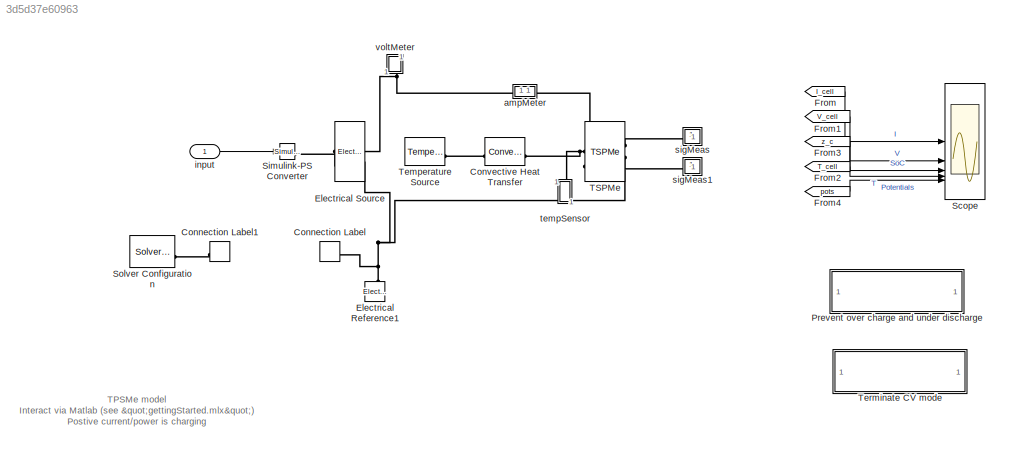
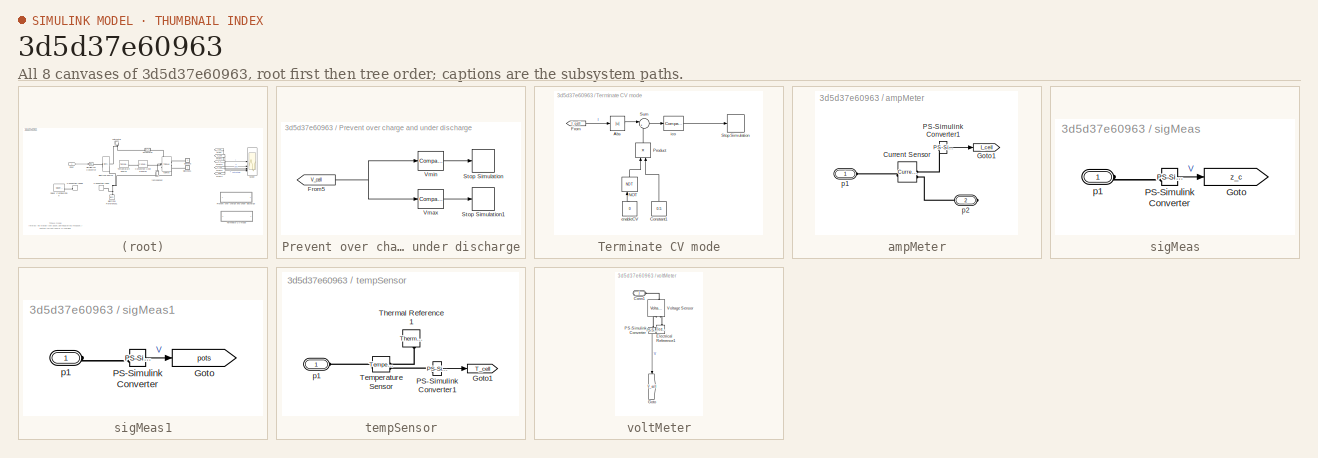
[diagram: thumbnail index - all 8 canvases of the model, root first then tree order]
MODEL slx_3d5d37e60963
KIND model
CONFIG AbsTol = 1e-3
CONFIG EnableMultiTasking = off
CONFIG FixedStep = auto
CONFIG MaxStep = auto
CONFIG MinStep = auto
CONFIG RelTol = 1e-3
CONFIG SampleTimeConstraint = Unconstrained
CONFIG SolverName = ode15s
CONFIG StartTime = 0.0
CONFIG StopTime = inf
BLOCK [ConnectionLabel] Connection Label
  Label = solver
  NameLocation = top
BLOCK [ConnectionLabel] Connection Label1
  Label = solver
BLOCK [Reference] Convective Heat Transfer  REF=fl_lib/Thermal/Thermal Elements/Convective Heat
Transfer
  NameLocation = top
  SourceBlock = fl_lib/Thermal/Thermal Elements/Convective Heat\nTransfer
  SourceType = Convective Heat\nTransfer
BLOCK [Reference] Electrical Reference1  REF=fl_lib/Electrical/Electrical Elements/Electrical Reference
  NameLocation = right
  SourceBlock = fl_lib/Electrical/Electrical Elements/Electrical Reference
  SourceType = Electrical Reference
BLOCK [Reference] Electrical Source  REF=BatteryLibrary_lib/Utilities/Electrical Source
  SourceBlock = BatteryLibrary_lib/Utilities/Electrical Source
  SourceType = Electrical Source
BLOCK [From] From
  GotoTag = I_cell
  TagVisibility = global
BLOCK [From] From1
  GotoTag = V_cell
  TagVisibility = global
BLOCK [From] From2
  GotoTag = T_cell
  TagVisibility = global
BLOCK [From] From3
  GotoTag = z_c
  TagVisibility = global
BLOCK [From] From4
  GotoTag = pots
  TagVisibility = global
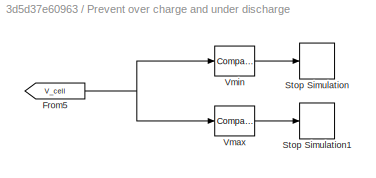
BLOCK [SubSystem] Prevent over charge and under discharge
BLOCK [From] Prevent over charge and under discharge/From5
  GotoTag = V_cell
  TagVisibility = global
BLOCK [Stop] Prevent over charge and under discharge/Stop Simulation
BLOCK [Stop] Prevent over charge and under discharge/Stop Simulation1
BLOCK [Reference] Prevent over charge and under discharge/Vmax  REF=simulink/Logic and Bit
Operations/Compare
To Constant
  SourceBlock = simulink/Logic and Bit\nOperations/Compare\nTo Constant
  SourceType = Compare To Constant
BLOCK [Reference] Prevent over charge and under discharge/Vmin  REF=simulink/Logic and Bit
Operations/Compare
To Constant
  SourceBlock = simulink/Logic and Bit\nOperations/Compare\nTo Constant
  SourceType = Compare To Constant
BLOCK [Scope] Scope
  Floating = off
  NumInputPorts = 5
  ScopeSpecificationString = Simulink.scopes.TimeScopeBlockCfg('CurrentConfiguration', extmgr.ConfigurationSet(extmgr.Configuration('Core','General UI',true),extmgr.Configuration('Core','Source UI',true),extmgr.Configuration('Sources','WiredSimulink',true),extmgr.Configuration('Visuals','Time Domain',true,'SerializedDisplays',{struct('MinYLimReal','-6.00000','MaxYLimReal','-4.00000','YLabelReal','','MinYLimMag','0.00000','Max...<+6285ch>
BLOCK [Reference] Simulink-PS Converter  REF=nesl_utility/Simulink-PS
Converter
  SourceBlock = nesl_utility/Simulink-PS\nConverter
  SourceType = Simulink-PS\nConverter
BLOCK [Reference] Solver Configuration  REF=nesl_utility/Solver
Configuration
  SourceBlock = nesl_utility/Solver\nConfiguration
  SourceType = Solver\nConfiguration
BLOCK [Reference] TSPMe  REF=BatteryLibrary_lib/Models/TSPMe
  SourceBlock = BatteryLibrary_lib/Models/TSPMe
  SourceType = TSPMe
BLOCK [Reference] Temperature Source  REF=fl_lib/Thermal/Thermal Sources/Temperature Source
  SourceBlock = fl_lib/Thermal/Thermal Sources/Temperature Source
  SourceType = Temperature Source
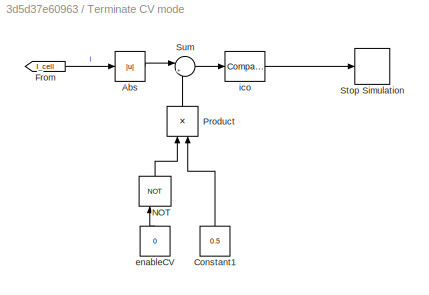
BLOCK [SubSystem] Terminate CV mode
BLOCK [Abs] Terminate CV mode/Abs
  SaturateOnIntegerOverflow = off
BLOCK [Constant] Terminate CV mode/Constant1
  NameLocation = right
  Value = 0.5
BLOCK [From] Terminate CV mode/From
  GotoTag = I_cell
  TagVisibility = global
BLOCK [Logic] Terminate CV mode/NOT
  AllPortsSameDT = off
  IconShape = distinctive
  NameLocation = right
  Operator = NOT
  OutDataTypeStr = boolean
BLOCK [Product] Terminate CV mode/Product
  NameLocation = right
BLOCK [Stop] Terminate CV mode/Stop Simulation
BLOCK [Sum] Terminate CV mode/Sum
  Inputs = |++
BLOCK [Constant] Terminate CV mode/enableCV
  NameLocation = left
  Value = 0
BLOCK [Reference] Terminate CV mode/ico  REF=simulink/Logic and Bit
Operations/Compare
To Constant
  SourceBlock = simulink/Logic and Bit\nOperations/Compare\nTo Constant
  SourceType = Compare To Constant
BLOCK [SubSystem] ampMeter
  ShowPortLabels = none
BLOCK [Reference] ampMeter/Current Sensor  REF=fl_lib/Electrical/Electrical Sensors/Current Sensor
  SourceBlock = fl_lib/Electrical/Electrical Sensors/Current Sensor
  SourceType = Current Sensor
BLOCK [Goto] ampMeter/Goto1
  GotoTag = I_cell
  TagVisibility = global
BLOCK [Reference] ampMeter/PS-Simulink Converter1  REF=nesl_utility/PS-Simulink
Converter
  SourceBlock = nesl_utility/PS-Simulink\nConverter
  SourceType = PS-Simulink\nConverter
BLOCK [PMIOPort] ampMeter/p1
  Side = Left
BLOCK [PMIOPort] ampMeter/p2
  Port = 2
  Side = Right
BLOCK [Inport] input
BLOCK [SubSystem] sigMeas
  ShowPortLabels = none
BLOCK [Goto] sigMeas/Goto
  GotoTag = z_c
  TagVisibility = global
BLOCK [Reference] sigMeas/PS-Simulink Converter  REF=nesl_utility/PS-Simulink
Converter
  SourceBlock = nesl_utility/PS-Simulink\nConverter
  SourceType = PS-Simulink\nConverter
BLOCK [PMIOPort] sigMeas/p1
  Side = Left
BLOCK [SubSystem] sigMeas1
  ShowPortLabels = none
BLOCK [Goto] sigMeas1/Goto
  GotoTag = pots
  TagVisibility = global
BLOCK [Reference] sigMeas1/PS-Simulink Converter  REF=nesl_utility/PS-Simulink
Converter
  SourceBlock = nesl_utility/PS-Simulink\nConverter
  SourceType = PS-Simulink\nConverter
BLOCK [PMIOPort] sigMeas1/p1
  Side = Left
BLOCK [SubSystem] tempSensor
  NameLocation = left
  ShowPortLabels = none
BLOCK [Goto] tempSensor/Goto1
  GotoTag = T_cell
  TagVisibility = global
BLOCK [Reference] tempSensor/PS-Simulink Converter1  REF=nesl_utility/PS-Simulink
Converter
  SourceBlock = nesl_utility/PS-Simulink\nConverter
  SourceType = PS-Simulink\nConverter
BLOCK [Reference] tempSensor/Temperature Sensor  REF=fl_lib/Thermal/Thermal Sensors/Temperature Sensor
  SourceBlock = fl_lib/Thermal/Thermal Sensors/Temperature Sensor
  SourceType = Temperature Sensor
BLOCK [Reference] tempSensor/Thermal Reference1  REF=fl_lib/Thermal/Thermal Elements/Thermal Reference
  NameLocation = left
  SourceBlock = fl_lib/Thermal/Thermal Elements/Thermal Reference
  SourceType = Thermal Reference
BLOCK [PMIOPort] tempSensor/p1
  Side = Left
BLOCK [SubSystem] voltMeter
  NameLocation = right
  ShowPortLabels = none
BLOCK [PMIOPort] voltMeter/Conn1
  Side = Left
BLOCK [Reference] voltMeter/Electrical Reference1  REF=fl_lib/Electrical/Electrical Elements/Electrical Reference
  NameLocation = right
  SourceBlock = fl_lib/Electrical/Electrical Elements/Electrical Reference
  SourceType = Electrical Reference
BLOCK [Goto] voltMeter/Goto
  GotoTag = V_cell
  NameLocation = left
  TagVisibility = global
BLOCK [Reference] voltMeter/PS-Simulink Converter  REF=nesl_utility/PS-Simulink
Converter
  NameLocation = left
  SourceBlock = nesl_utility/PS-Simulink\nConverter
  SourceType = PS-Simulink\nConverter
BLOCK [Reference] voltMeter/Voltage Sensor  REF=fl_lib/Electrical/Electrical Sensors/Voltage Sensor
  NameLocation = right
  SourceBlock = fl_lib/Electrical/Electrical Sensors/Voltage Sensor
  SourceType = Voltage Sensor
ANNOTATION (root): TPSMe model Interact via Matlab (see "gettingStarted.mlx") Postive current/power is charging
LINE From1:1 -> Scope:2
LINE From2:1 -> Scope:4
LINE From3:1 -> Scope:3
LINE From4:1 -> Scope:5
LINE From:1 -> Scope:1
NET Prevent over charge and under discharge/From5:1 -> Prevent over charge and under discharge/Vmax:1, Prevent over charge and under discharge/Vmin:1
LINE Prevent over charge and under discharge/Vmax:1 -> Prevent over charge and under discharge/Stop Simulation1:1
LINE Prevent over charge and under discharge/Vmin:1 -> Prevent over charge and under discharge/Stop Simulation:1
LINE Terminate CV mode/Abs:1 -> Terminate CV mode/Sum:1
LINE Terminate CV mode/Constant1:1 -> Terminate CV mode/Product:2
LINE Terminate CV mode/From:1 -> Terminate CV mode/Abs:1
LINE Terminate CV mode/NOT:1 -> Terminate CV mode/Product:1
LINE Terminate CV mode/Product:1 -> Terminate CV mode/Sum:2
LINE Terminate CV mode/Sum:1 -> Terminate CV mode/ico:1
LINE Terminate CV mode/enableCV:1 -> Terminate CV mode/NOT:1
LINE Terminate CV mode/ico:1 -> Terminate CV mode/Stop Simulation:1
LINE ampMeter/PS-Simulink Converter1:1 -> ampMeter/Goto1:1
LINE input:1 -> Simulink-PS Converter:1
LINE sigMeas/PS-Simulink Converter:1 -> sigMeas/Goto:1
LINE sigMeas1/PS-Simulink Converter:1 -> sigMeas1/Goto:1
LINE tempSensor/PS-Simulink Converter1:1 -> tempSensor/Goto1:1
LINE voltMeter/PS-Simulink Converter:1 -> voltMeter/Goto:1
PLINE Connection Label1:LConn1 -- Solver Configuration:RConn1
PNET net1: Connection Label:LConn1 -- Electrical Reference1:LConn1 -- Electrical Source:RConn1 -- TSPMe:RConn3
PNET net2: Convective Heat Transfer:LConn1 -- TSPMe:LConn1 -- tempSensor:LConn1
PLINE Convective Heat Transfer:RConn1 -- Temperature Source:LConn1
PLINE Electrical Source:LConn1 -- Simulink-PS Converter:RConn1
PNET net3: Electrical Source:LConn2 -- ampMeter:LConn1 -- voltMeter:LConn1
PLINE TSPMe:LConn2 -- ampMeter:RConn1
PLINE TSPMe:RConn1 -- sigMeas:LConn1
PLINE TSPMe:RConn2 -- sigMeas1:LConn1
PLINE ampMeter/Current Sensor:LConn1 -- ampMeter/p1:RConn1
PLINE ampMeter/Current Sensor:RConn1 -- ampMeter/PS-Simulink Converter1:LConn1
PLINE ampMeter/Current Sensor:RConn2 -- ampMeter/p2:RConn1
PLINE sigMeas/PS-Simulink Converter:LConn1 -- sigMeas/p1:RConn1
PLINE sigMeas1/PS-Simulink Converter:LConn1 -- sigMeas1/p1:RConn1
PLINE tempSensor/PS-Simulink Converter1:LConn1 -- tempSensor/Temperature Sensor:RConn2
PLINE tempSensor/Temperature Sensor:LConn1 -- tempSensor/p1:RConn1
PLINE tempSensor/Temperature Sensor:RConn1 -- tempSensor/Thermal Reference1:LConn1
PLINE voltMeter/Conn1:RConn1 -- voltMeter/Voltage Sensor:LConn1
PLINE voltMeter/Electrical Reference1:LConn1 -- voltMeter/Voltage Sensor:RConn2
PLINE voltMeter/PS-Simulink Converter:LConn1 -- voltMeter/Voltage Sensor:RConn1
note: NET lines group one-source signal fan-out (src -> all destinations, sorted); 1:1 wires keep LINE; PNET lines group multi-terminal physical nets as a canonical sorted terminal list (undirected conserving connections); 2-terminal nets keep the pairwise PLINE form
